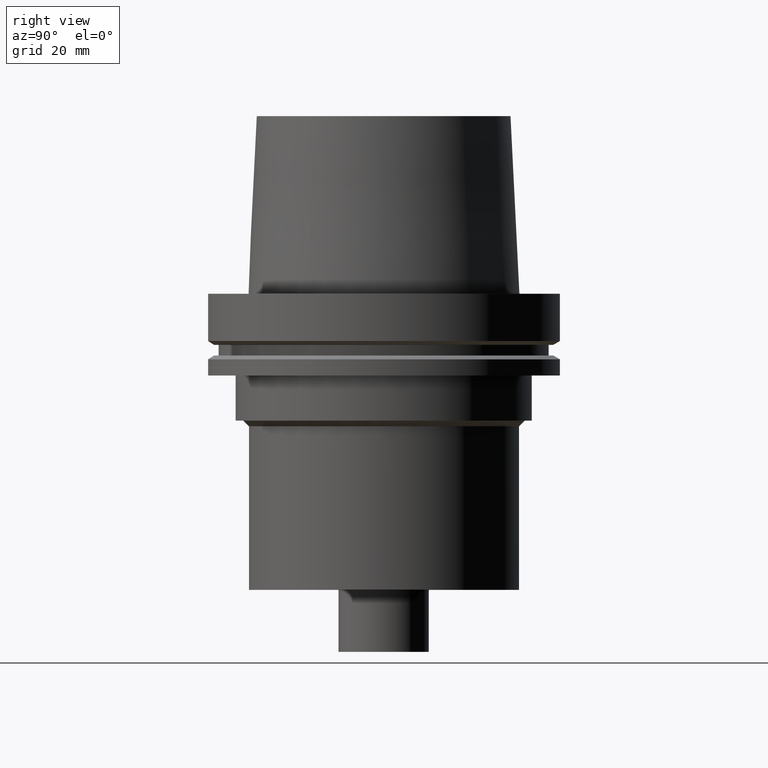
[diagram: clean part render]
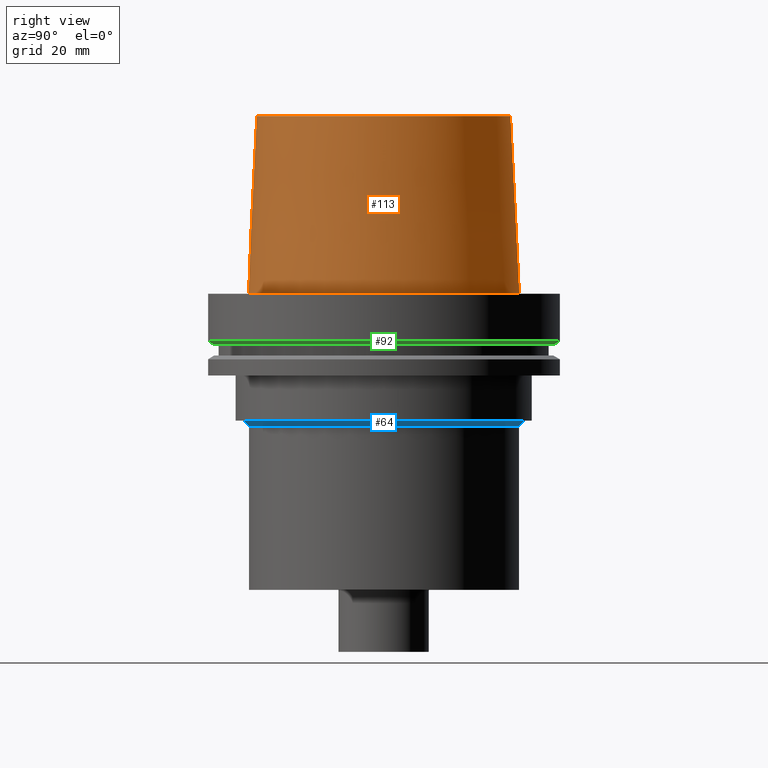
[diagram: same view with three faces highlighted in distinct colors, each labeled with its STEP entity id]
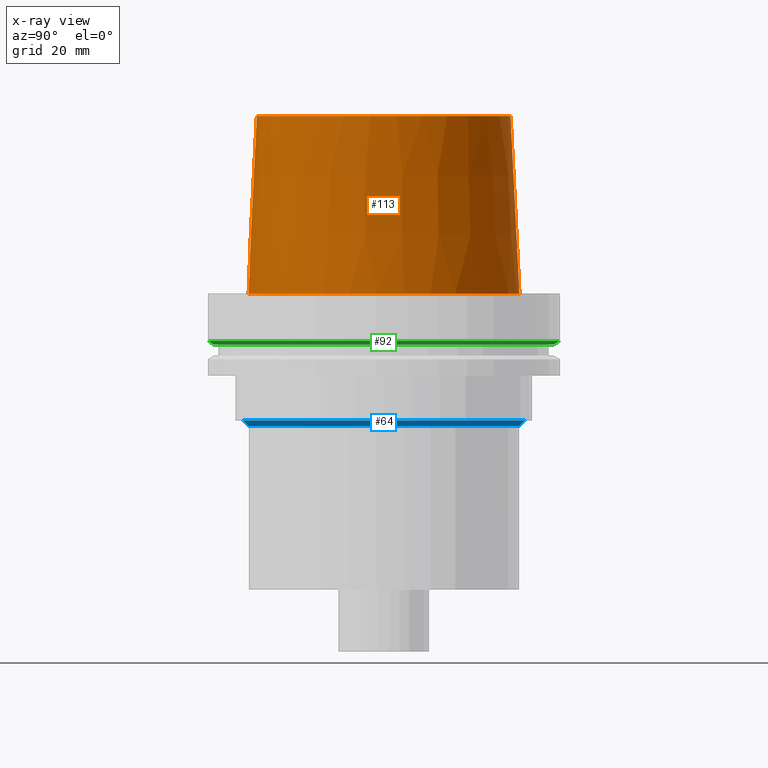
[diagram: x-ray of the same camera — body ghosted, the three highlighted faces saturated]
A machine part, right view with three faces highlighted in distinct colors.
The next image is the same camera in x-ray (body ghosted, the three faces saturated) — at least one of them is partly hidden behind the body in this view.
Their STEP definitions:

[orange] entity #113 — the highlighted conical surface has half-angle 2.868 deg.
#106=EDGE_CURVE('Unnamed[1]',#240,#240,#241,.T.);
#113=ADVANCED_FACE('Unnamed[1]',(#250,#251),#252,.T.);
#129=EDGE_CURVE('Unnamed[1]',#276,#276,#277,.T.);
#240=VERTEX_POINT('',#406);
#241=CIRCLE('',#407,44.9779398797591);
#250=FACE_BOUND('',#419,.T.);
#251=FACE_BOUND('',#420,.T.);
#252=CONICAL_SURFACE('',#421,46.5560961923844,0.0500583457465964);
#276=VERTEX_POINT('',#452);
#277=CIRCLE('',#453,48.1342525050097);
#406=CARTESIAN_POINT('',(-3.85763741731416E-015,44.9779398797591,62.9999999999999));
#407=AXIS2_PLACEMENT_3D('',#577,#578,#579);
#419=EDGE_LOOP('',(#587));
#420=EDGE_LOOP('',(#588));
#421=AXIS2_PLACEMENT_3D('',#589,#590,#591);
#452=CARTESIAN_POINT('',(3.88342032297484E-029,48.1342525050097,-6.38005254174039E-013));
#453=AXIS2_PLACEMENT_3D('',#616,#617,#618);
#577=CARTESIAN_POINT('',(-3.85763741731416E-015,-7.71527483462831E-015,62.9999999999999));
#578=DIRECTION('',(6.12323399573677E-017,1.22464679914735E-016,-1.0));
#579=DIRECTION('',(-1.23259516440783E-032,1.0,1.22464679914735E-016));
#587=ORIENTED_EDGE('',*,*,#129,.F.);
#588=ORIENTED_EDGE('',*,*,#106,.T.);
#589=CARTESIAN_POINT('',(-1.92881870865706E-015,-3.85763741731411E-015,31.4999999999996));
#590=DIRECTION('',(6.12323399573676E-017,1.22464679914735E-016,-1.0));
#591=DIRECTION('',(-1.23259516440783E-032,1.0,1.22464679914735E-016));
#616=CARTESIAN_POINT('',(3.91573749152705E-029,7.83147498305409E-029,-6.3948846218409E-013));
#617=DIRECTION('',(6.12323399573677E-017,1.22464679914735E-016,-1.0));
#618=DIRECTION('',(-1.23259516440783E-032,1.0,1.22464679914735E-016));

[blue] entity #64 — the highlighted conical surface has half-angle 45 deg.
#64=ADVANCED_FACE('Unnamed[1]',(#173,#174),#175,.T.);
#131=EDGE_CURVE('Unnamed[1]',#279,#279,#280,.T.);
#138=EDGE_CURVE('Unnamed[1]',#290,#290,#291,.T.);
#173=FACE_BOUND('',#323,.T.);
#174=FACE_BOUND('',#324,.T.);
#175=CONICAL_SURFACE('',#325,48.9999999999999,0.785398163397411);
#279=VERTEX_POINT('',#456);
#280=CIRCLE('',#457,49.9999999999999);
#290=VERTEX_POINT('',#470);
#291=CIRCLE('',#471,48.0);
#323=EDGE_LOOP('',(#499));
#324=EDGE_LOOP('',(#500));
#325=AXIS2_PLACEMENT_3D('',#501,#502,#503);
#456=CARTESIAN_POINT('',(2.75545529808155E-015,49.9999999999999,-45.0000000000001));
#457=AXIS2_PLACEMENT_3D('',#619,#620,#621);
#470=CARTESIAN_POINT('',(2.87791997799629E-015,48.0,-47.0000000000001));
#471=AXIS2_PLACEMENT_3D('',#631,#632,#633);
#499=ORIENTED_EDGE('',*,*,#138,.F.);
#500=ORIENTED_EDGE('',*,*,#131,.T.);
#501=CARTESIAN_POINT('',(2.81668763803892E-015,5.63337527607784E-015,-46.0000000000001));
#502=DIRECTION('',(-6.12323399573677E-017,-1.22464679914735E-016,1.0));
#503=DIRECTION('',(-1.23259516440783E-032,1.0,1.22464679914735E-016));
#619=CARTESIAN_POINT('',(2.75545529808155E-015,5.5109105961631E-015,-45.0000000000001));
#620=DIRECTION('',(6.12323399573677E-017,1.22464679914735E-016,-1.0));
#621=DIRECTION('',(-1.23259516440783E-032,1.0,1.22464679914735E-016));
#631=CARTESIAN_POINT('',(2.87791997799629E-015,5.75583995599257E-015,-47.0000000000001));
#632=DIRECTION('',(6.12323399573677E-017,1.22464679914735E-016,-1.0));
#633=DIRECTION('',(-1.23259516440783E-032,1.0,1.22464679914735E-016));

[green] entity #92 — the highlighted conical surface has half-angle 60 deg.
#92=ADVANCED_FACE('Unnamed[1]',(#218,#219),#220,.T.);
#118=EDGE_CURVE('Unnamed[1]',#259,#259,#260,.T.);
#149=EDGE_CURVE('Unnamed[1]',#306,#306,#307,.T.);
#218=FACE_BOUND('',#378,.T.);
#219=FACE_BOUND('',#379,.T.);
#220=CONICAL_SURFACE('',#380,61.3112976320956,1.04719755119668);
#259=VERTEX_POINT('',#430);
#260=CIRCLE('',#431,60.1225952641912);
#306=VERTEX_POINT('',#489);
#307=CIRCLE('',#490,62.5);
#378=EDGE_LOOP('',(#552));
#379=EDGE_LOOP('',(#553));
#380=AXIS2_PLACEMENT_3D('',#554,#555,#556);
#430=CARTESIAN_POINT('',(1.10983616172729E-015,60.1225952641912,-18.1250000000001));
#431=AXIS2_PLACEMENT_3D('',#598,#599,#600);
#489=CARTESIAN_POINT('',(1.02578894188644E-015,62.5,-16.7524047358084));
#490=AXIS2_PLACEMENT_3D('',#647,#648,#649);
#552=ORIENTED_EDGE('',*,*,#118,.F.);
#553=ORIENTED_EDGE('',*,*,#149,.T.);
#554=CARTESIAN_POINT('',(1.06781255180686E-015,2.13562510361373E-015,-17.4387023679042));
#555=DIRECTION('',(-6.12323399573676E-017,-1.22464679914735E-016,1.0));
#556=DIRECTION('',(-1.23259516440783E-032,1.0,1.22464679914735E-016));
#598=CARTESIAN_POINT('',(1.10983616172729E-015,2.21967232345459E-015,-18.1250000000001));
#599=DIRECTION('',(6.12323399573677E-017,1.22464679914735E-016,-1.0));
#600=DIRECTION('',(-1.23259516440783E-032,1.0,1.22464679914735E-016));
#647=CARTESIAN_POINT('',(1.02578894188644E-015,2.05157788377287E-015,-16.7524047358084));
#648=DIRECTION('',(6.12323399573676E-017,1.22464679914735E-016,-1.0));
#649=DIRECTION('',(-1.23259516440783E-032,1.0,1.22464679914735E-016));